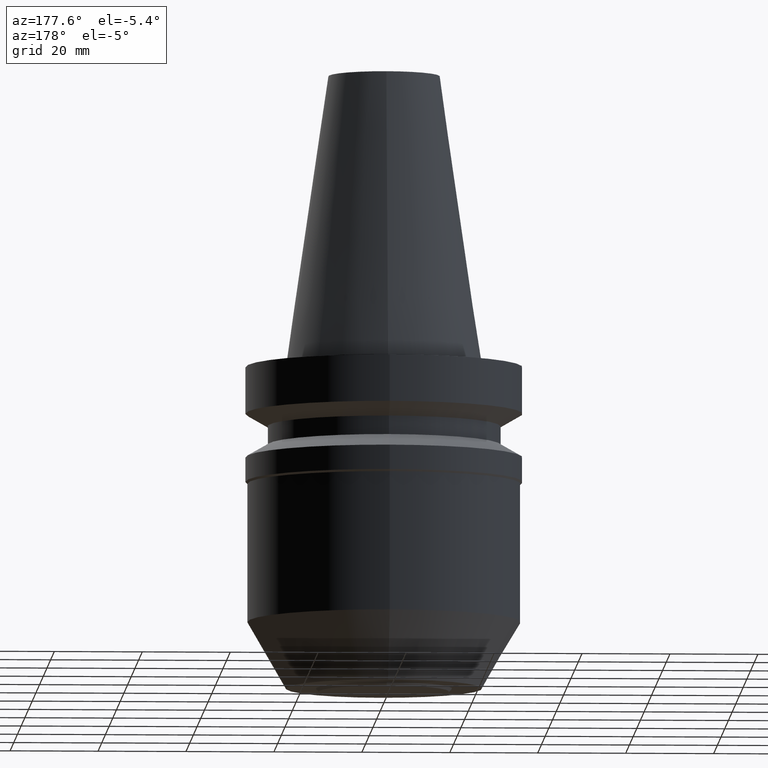
[diagram: clean part render]
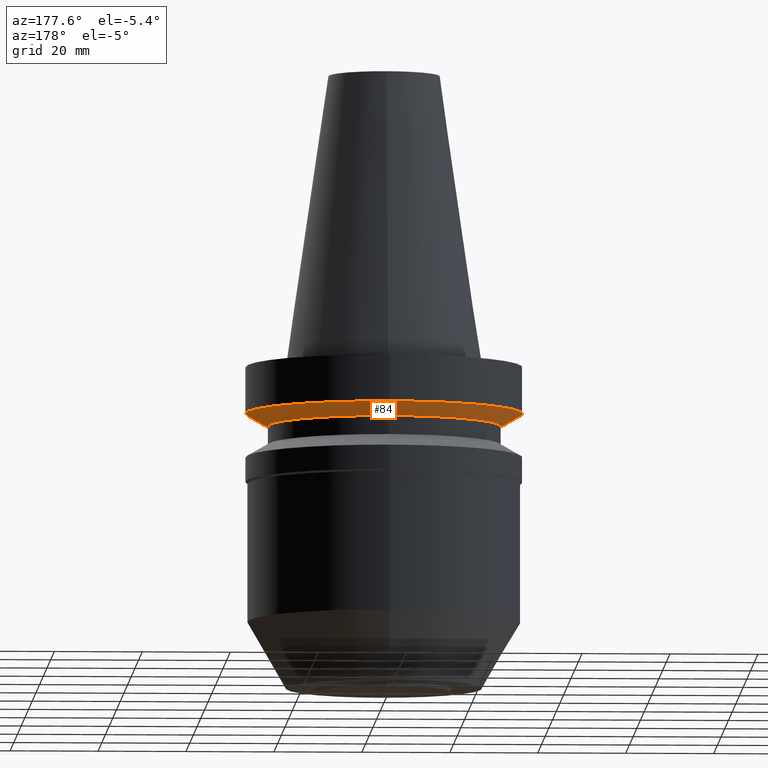
[diagram: same view with one face highlighted and labeled with its STEP entity id]
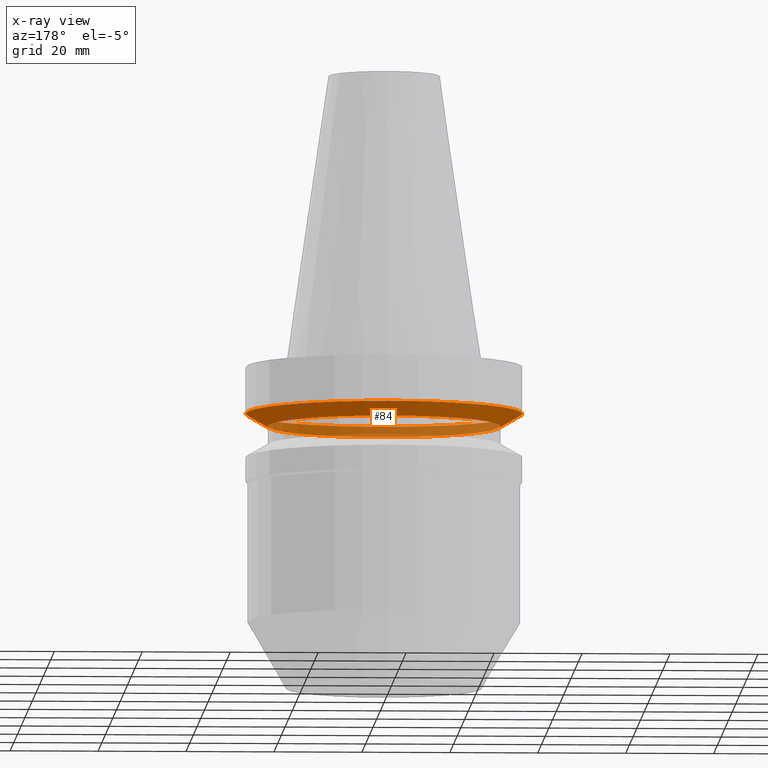
[diagram: x-ray of the same camera — body ghosted, the highlighted face saturated]
A machine part, auxiliary view. The second image highlights one B-rep face of the part: STEP entity #84.
The next image is the same camera in x-ray: the body ghosted, the highlighted face saturated — about 35% of this face is hidden behind the body in this view.
In plain terms, the highlighted conical surface has half-angle 60 deg.
Its self-contained STEP definition (entity closure, byte-faithful):
#84=ADVANCED_FACE('',(#117,#118),#119,.T.);
#117=FACE_BOUND('',#160,.T.);
#118=FACE_BOUND('',#161,.T.);
#119=CONICAL_SURFACE('',#162,29.0000000000006,1.04719755119657);
#160=EDGE_LOOP('',(#221));
#161=EDGE_LOOP('',(#222));
#162=AXIS2_PLACEMENT_3D('',#223,#224,#225);
#221=ORIENTED_EDGE('',*,*,#259,.F.);
#222=ORIENTED_EDGE('',*,*,#258,.T.);
#223=CARTESIAN_POINT('',(7.9868539427414E-016,1.59737078854828E-015,-13.0435223417922));
#224=DIRECTION('',(-6.12323399573677E-017,-1.22464679914709E-016,1.0));
#225=DIRECTION('',(-1.2325951644078E-032,1.0,1.22464679914709E-016));
#258=EDGE_CURVE('',#280,#280,#281,.T.);
#259=EDGE_CURVE('',#282,#282,#283,.T.);
#280=VERTEX_POINT('',#308);
#281=CIRCLE('',#309,26.5000000000001);
#282=VERTEX_POINT('',#310);
#283=CIRCLE('',#311,31.5000000000011);
#308=CARTESIAN_POINT('',(8.87066664167907E-016,26.5000000000001,-14.4868980147667));
#309=AXIS2_PLACEMENT_3D('',#344,#345,#346);
#310=CARTESIAN_POINT('',(7.10304124380372E-016,31.5000000000011,-11.6001466688177));
#311=AXIS2_PLACEMENT_3D('',#347,#348,#349);
#344=CARTESIAN_POINT('',(8.87066664167907E-016,1.77413332833581E-015,-14.4868980147667));
#345=DIRECTION('',(-6.12323399573677E-017,-1.22464679914764E-016,1.0));
#346=DIRECTION('',(-1.23259516440783E-032,1.0,1.22464679914764E-016));
#347=CARTESIAN_POINT('',(7.10304124380372E-016,1.42060824876074E-015,-11.6001466688177));
#348=DIRECTION('',(-6.12323399573677E-017,-1.22464679914766E-016,1.0));
#349=DIRECTION('',(-1.23259516440779E-032,1.0,1.22464679914766E-016));